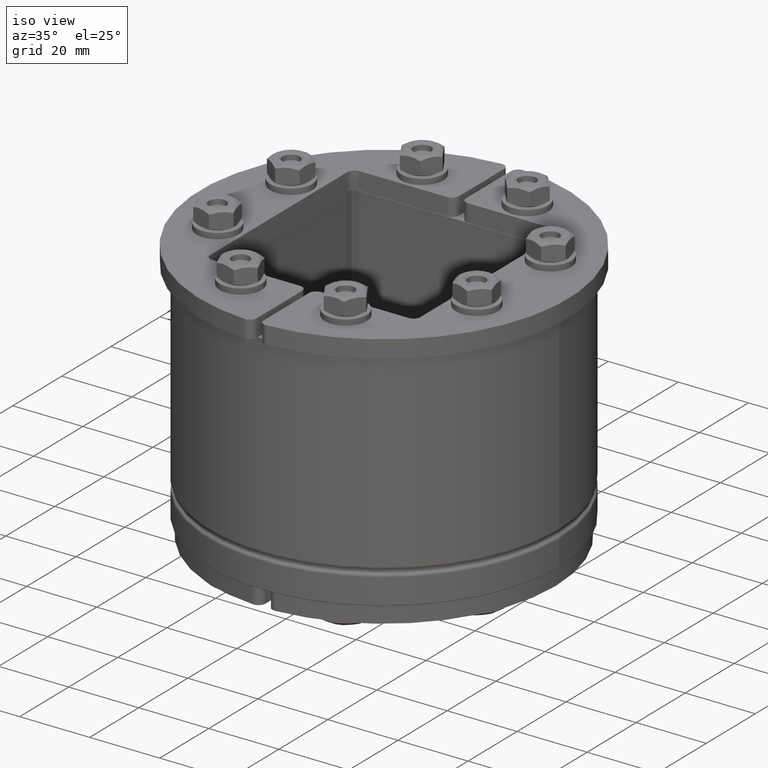
[diagram: clean part render]
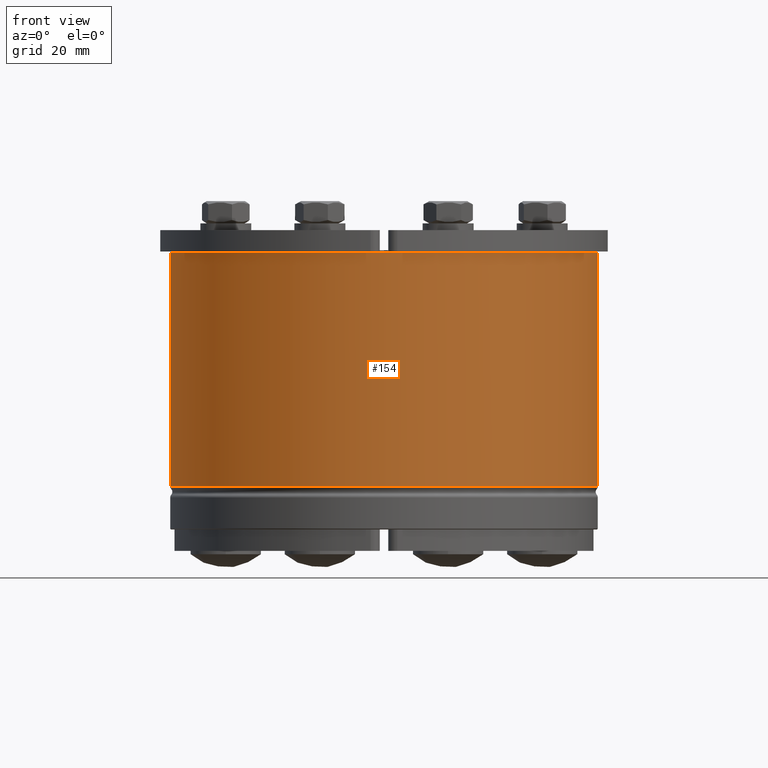
[diagram: tour spotlight — one face highlighted and labeled with its STEP entity id]
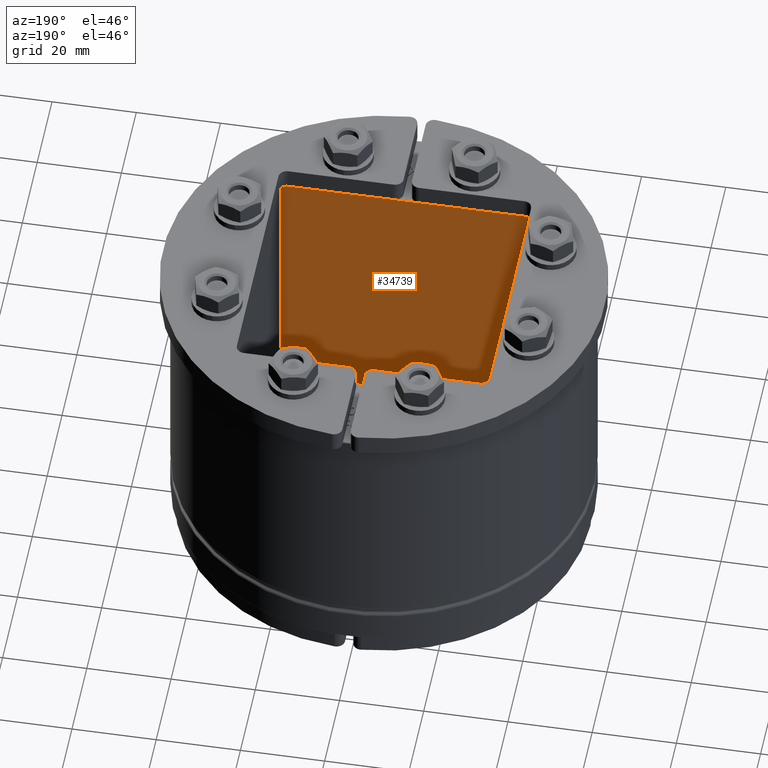
[diagram: tour spotlight — one face highlighted and labeled with its STEP entity id]
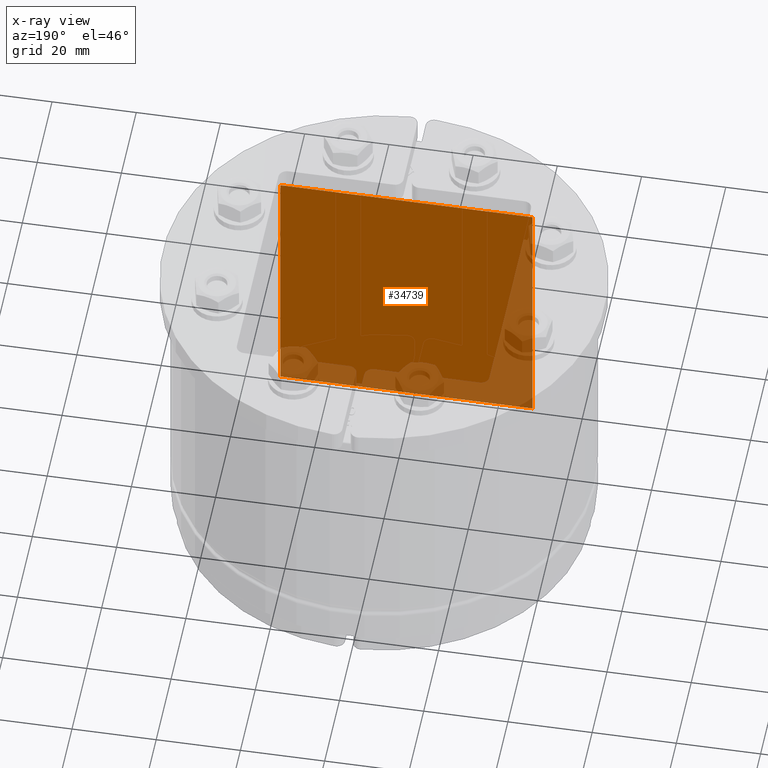
[diagram: x-ray of the same camera — body ghosted, this tour face saturated]
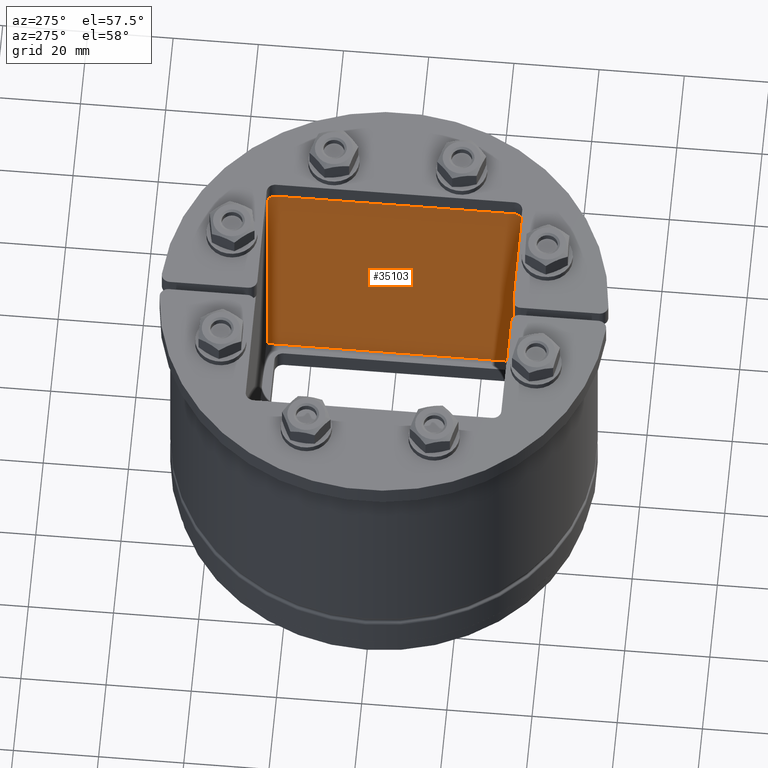
[diagram: tour spotlight — one face highlighted and labeled with its STEP entity id]
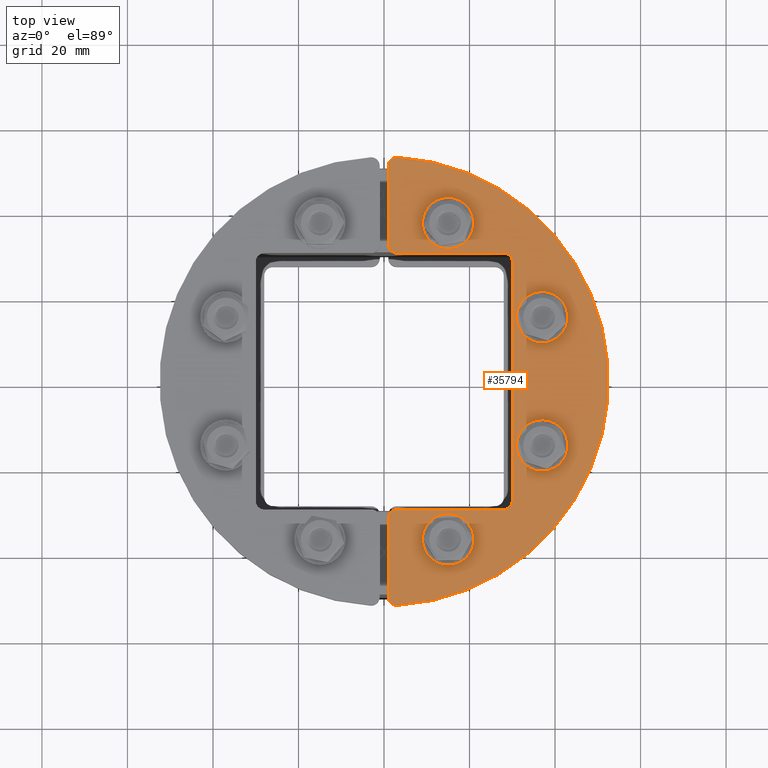
[diagram: tour spotlight — one face highlighted and labeled with its STEP entity id]
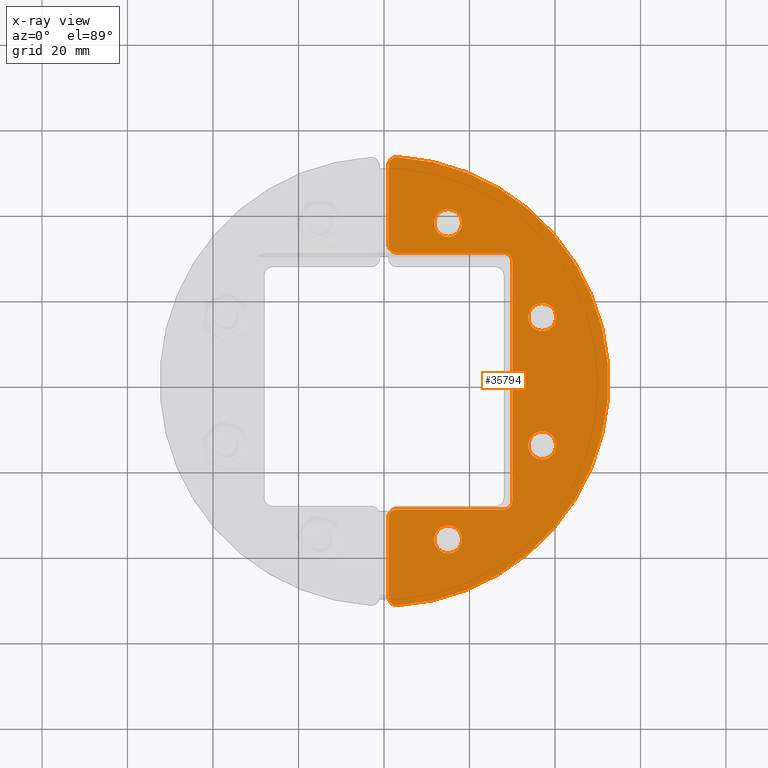
[diagram: x-ray of the same camera — body ghosted, this tour face saturated]
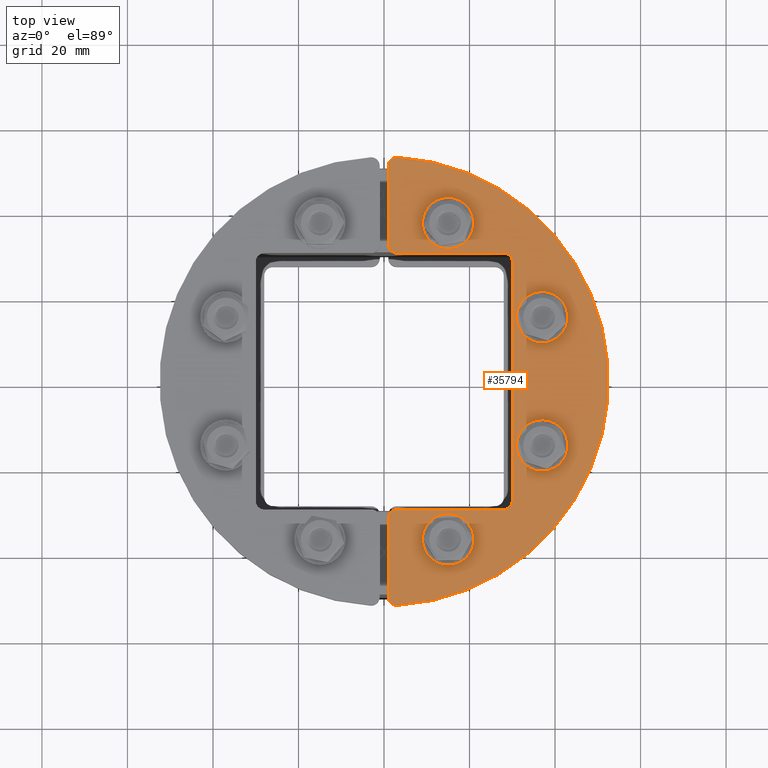
[diagram: tour spotlight — one face highlighted and labeled with its STEP entity id]
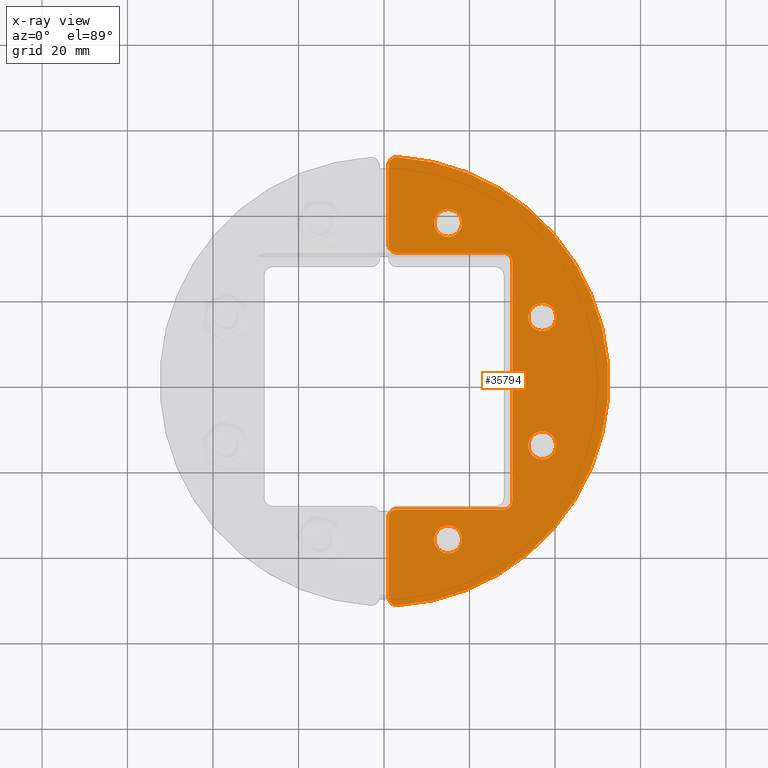
[diagram: x-ray of the same camera — body ghosted, this tour face saturated]
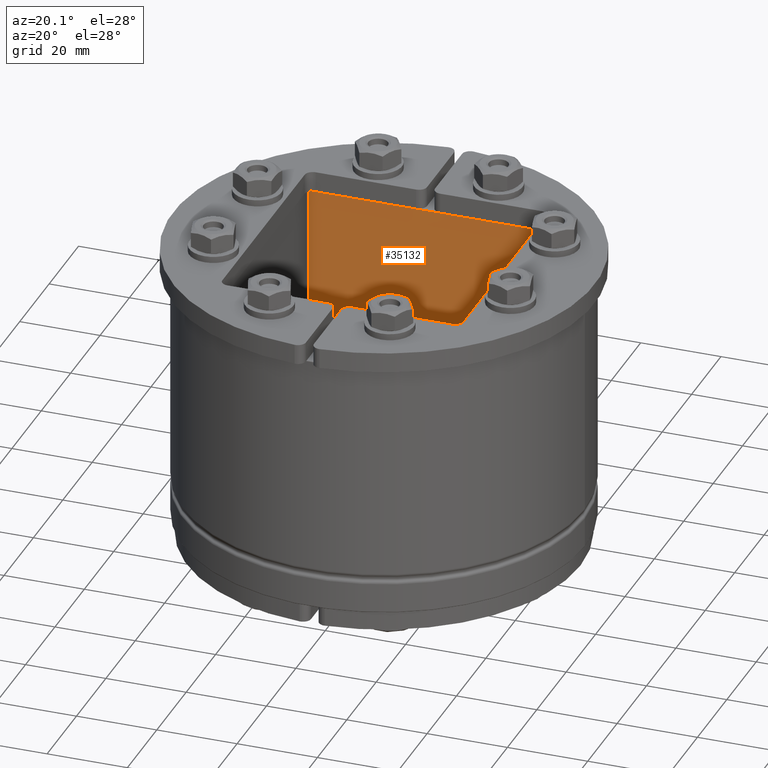
[diagram: tour spotlight — one face highlighted and labeled with its STEP entity id]
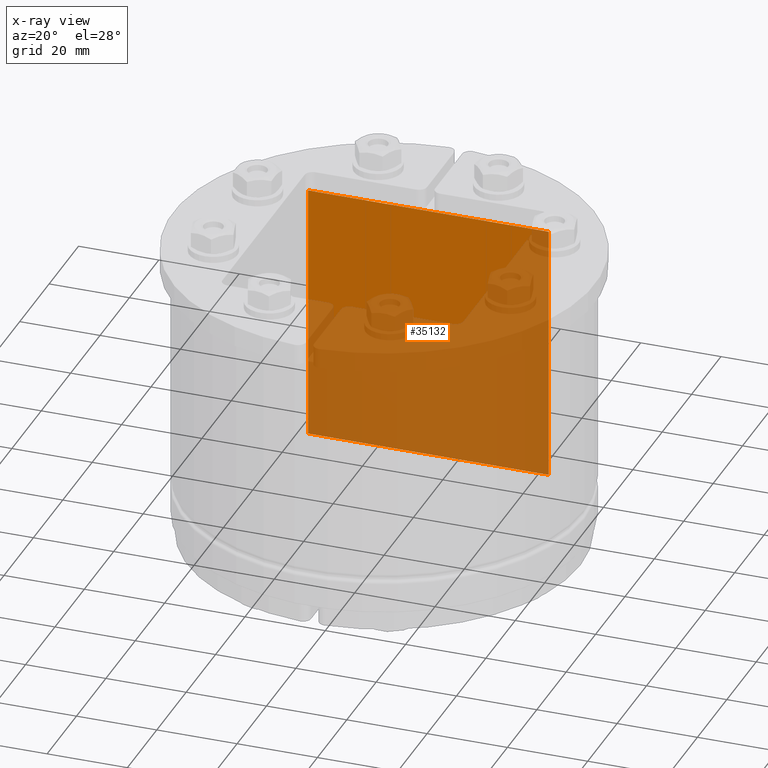
[diagram: x-ray of the same camera — body ghosted, this tour face saturated]
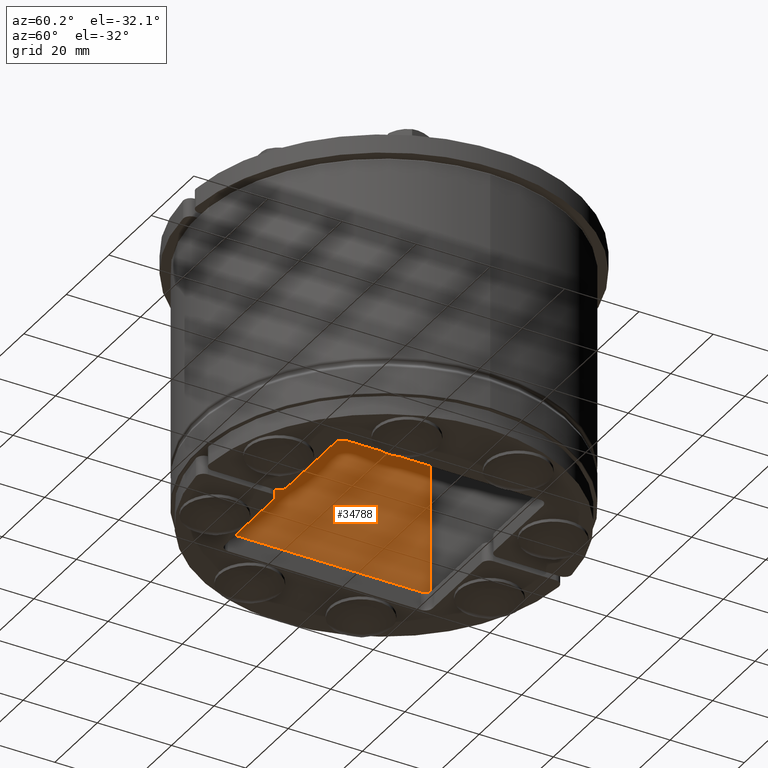
[diagram: tour spotlight — one face highlighted and labeled with its STEP entity id]
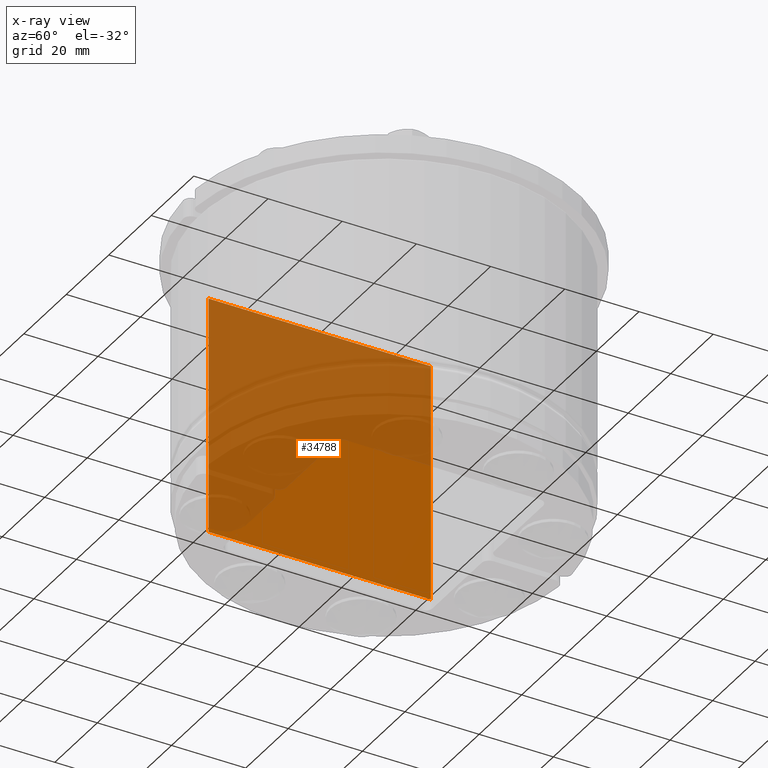
[diagram: x-ray of the same camera — body ghosted, this tour face saturated]
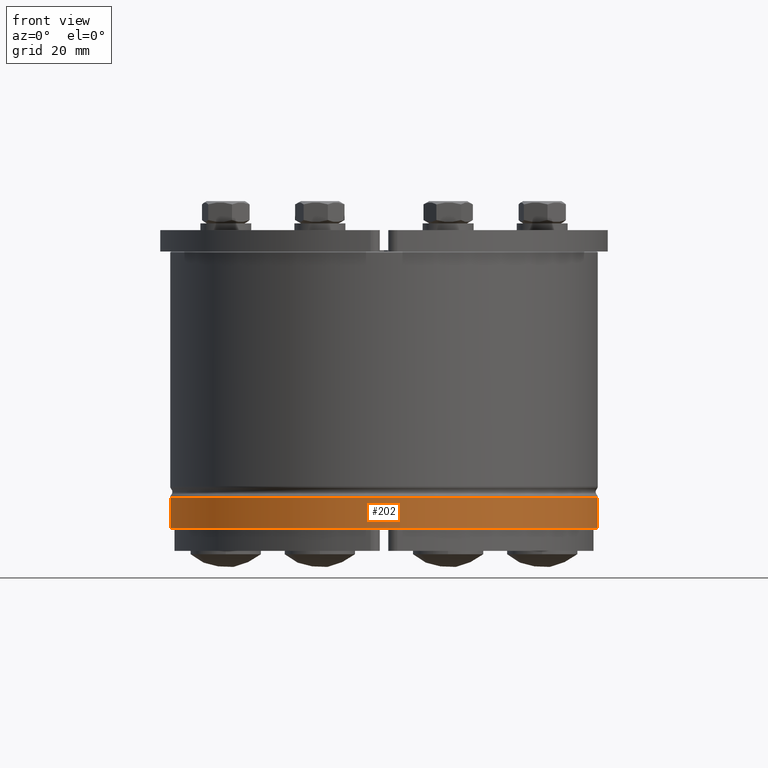
[diagram: tour spotlight — one face highlighted and labeled with its STEP entity id]
A machine part: a face-by-face anatomy tour. The part has 1444 B-rep faces; the first image is the clean iso view, then the 8 largest visible faces are spotlighted one at a time (largest first), each with its STEP entity span.

Face 1 — front view, entity #154. In plain terms, the highlighted cylindrical surface (bore or boss wall) has radius 50 mm, axis along (0, 0, 1).
Definition (entity closure, byte-faithful):
#123=CARTESIAN_POINT('',(50.0,-6.123234E-015,10.122875655532301));
#124=VERTEX_POINT('',#123);
#125=CARTESIAN_POINT('',(0.0,0.0,10.122875655532301));
#126=DIRECTION('',(0.0,0.0,-1.0));
#127=DIRECTION('',(-1.0,0.0,0.0));
#128=AXIS2_PLACEMENT_3D('',#125,#126,#127);
#129=CIRCLE('',#128,50.0);
#130=EDGE_CURVE('',#124,#124,#129,.T.);
#135=CARTESIAN_POINT('',(0.0,0.0,0.0));
#136=DIRECTION('',(0.0,0.0,1.0));
#137=DIRECTION('',(-1.0,0.0,0.0));
#138=AXIS2_PLACEMENT_3D('',#135,#136,#137);
#139=CYLINDRICAL_SURFACE('',#138,50.0);
#140=CARTESIAN_POINT('',(50.0,6.123234E-015,64.700000000000003));
#141=VERTEX_POINT('',#140);
#142=CARTESIAN_POINT('',(0.0,0.0,64.700000000000003));
#143=DIRECTION('',(0.0,0.0,1.0));
#144=DIRECTION('',(-1.0,0.0,0.0));
#145=AXIS2_PLACEMENT_3D('',#142,#143,#144);
#146=CIRCLE('',#145,50.0);
#147=EDGE_CURVE('',#141,#141,#146,.T.);
#148=ORIENTED_EDGE('',*,*,#147,.F.);
#149=EDGE_LOOP('',(#148));
#150=FACE_OUTER_BOUND('',#149,.T.);
#151=ORIENTED_EDGE('',*,*,#130,.F.);
#152=EDGE_LOOP('',(#151));
#153=FACE_BOUND('',#152,.T.);
#154=ADVANCED_FACE('',(#150,#153),#139,.T.);

Face 2 — auxiliary view, entity #34739. An x-ray twin of the same camera follows (body ghosted, this face saturated) — the face is partly hidden behind the body. In plain terms, the highlighted planar face has unit normal (0, -1, 0).
Definition (entity closure, byte-faithful):
#34620=CARTESIAN_POINT('',(29.95000000000001,-30.250000000000004,0.3));
#34621=VERTEX_POINT('',#34620);
#34646=CARTESIAN_POINT('',(-29.95000000000001,-30.250000000000004,0.3));
#34647=VERTEX_POINT('',#34646);
#34655=CARTESIAN_POINT('',(-29.95000000000001,-30.250000000000004,0.3));
#34656=DIRECTION('',(1.0,0.0,0.0));
#34657=VECTOR('',#34656,59.90000000000002);
#34658=LINE('',#34655,#34657);
#34659=EDGE_CURVE('',#34647,#34621,#34658,.T.);
#34709=CARTESIAN_POINT('',(30.250000000000004,-30.250000000000004,0.0));
#34710=DIRECTION('',(0.0,-1.0,0.0));
#34711=DIRECTION('',(0.0,0.0,-1.0));
#34712=AXIS2_PLACEMENT_3D('',#34709,#34710,#34711);
#34713=PLANE('',#34712);
#34714=ORIENTED_EDGE('',*,*,#34659,.F.);
#34715=CARTESIAN_POINT('',(-29.95000000000001,-30.250000000000004,64.700000000000003));
#34716=VERTEX_POINT('',#34715);
#34717=CARTESIAN_POINT('',(-29.95000000000001,-30.250000000000004,64.700000000000003));
#34718=DIRECTION('',(0.0,0.0,-1.0));
#34719=VECTOR('',#34718,64.400000000000006);
#34720=LINE('',#34717,#34719);
#34721=EDGE_CURVE('',#34716,#34647,#34720,.T.);
#34722=ORIENTED_EDGE('',*,*,#34721,.F.);
#34723=CARTESIAN_POINT('',(29.95000000000001,-30.250000000000004,64.700000000000003));
#34724=VERTEX_POINT('',#34723);
#34725=CARTESIAN_POINT('',(29.95000000000001,-30.250000000000004,64.700000000000003));
#34726=DIRECTION('',(-1.0,0.0,0.0));
#34727=VECTOR('',#34726,59.90000000000002);
#34728=LINE('',#34725,#34727);
#34729=EDGE_CURVE('',#34724,#34716,#34728,.T.);
#34730=ORIENTED_EDGE('',*,*,#34729,.F.);
#34731=CARTESIAN_POINT('',(29.95000000000001,-30.250000000000004,0.3));
#34732=DIRECTION('',(0.0,0.0,1.0));
#34733=VECTOR('',#34732,64.400000000000006);
#34734=LINE('',#34731,#34733);
#34735=EDGE_CURVE('',#34621,#34724,#34734,.T.);
#34736=ORIENTED_EDGE('',*,*,#34735,.F.);
#34737=EDGE_LOOP('',(#34714,#34722,#34730,#34736));
#34738=FACE_OUTER_BOUND('',#34737,.T.);
#34739=ADVANCED_FACE('',(#34738),#34713,.F.);

Face 3 — auxiliary view, entity #35103. In plain terms, the highlighted planar face has unit normal (1, 0, 0).
Definition (entity closure, byte-faithful):
#34569=CARTESIAN_POINT('',(30.250000000000004,29.95000000000001,0.3));
#34570=VERTEX_POINT('',#34569);
#34595=CARTESIAN_POINT('',(30.250000000000004,-29.95000000000001,0.3));
#34596=VERTEX_POINT('',#34595);
#34604=CARTESIAN_POINT('',(30.250000000000004,-29.95000000000001,0.3));
#34605=DIRECTION('',(0.0,1.0,0.0));
#34606=VECTOR('',#34605,59.90000000000002);
#34607=LINE('',#34604,#34606);
#34608=EDGE_CURVE('',#34596,#34570,#34607,.T.);
#34993=CARTESIAN_POINT('',(30.250000000000004,-29.95000000000001,64.700000000000003));
#34994=VERTEX_POINT('',#34993);
#35019=CARTESIAN_POINT('',(30.250000000000004,29.95000000000001,64.700000000000003));
#35020=VERTEX_POINT('',#35019);
#35028=CARTESIAN_POINT('',(30.250000000000004,29.95000000000001,64.700000000000003));
#35029=DIRECTION('',(0.0,-1.0,0.0));
#35030=VECTOR('',#35029,59.90000000000002);
#35031=LINE('',#35028,#35030);
#35032=EDGE_CURVE('',#35020,#34994,#35031,.T.);
#35082=CARTESIAN_POINT('',(30.250000000000004,30.250000000000004,0.0));
#35083=DIRECTION('',(1.0,0.0,0.0));
#35084=DIRECTION('',(0.0,0.0,-1.0));
#35085=AXIS2_PLACEMENT_3D('',#35082,#35083,#35084);
#35086=PLANE('',#35085);
#35087=ORIENTED_EDGE('',*,*,#34608,.F.);
#35088=CARTESIAN_POINT('',(30.250000000000004,-29.95000000000001,64.700000000000003));
#35089=DIRECTION('',(0.0,0.0,-1.0));
#35090=VECTOR('',#35089,64.400000000000006);
#35091=LINE('',#35088,#35090);
#35092=EDGE_CURVE('',#34994,#34596,#35091,.T.);
#35093=ORIENTED_EDGE('',*,*,#35092,.F.);
#35094=ORIENTED_EDGE('',*,*,#35032,.F.);
#35095=CARTESIAN_POINT('',(30.250000000000004,29.95000000000001,0.3));
#35096=DIRECTION('',(0.0,0.0,1.0));
#35097=VECTOR('',#35096,64.400000000000006);
#35098=LINE('',#35095,#35097);
#35099=EDGE_CURVE('',#34570,#35020,#35098,.T.);
#35100=ORIENTED_EDGE('',*,*,#35099,.F.);
#35101=EDGE_LOOP('',(#35087,#35093,#35094,#35100));
#35102=FACE_OUTER_BOUND('',#35101,.T.);
#35103=ADVANCED_FACE('',(#35102),#35086,.F.);

Face 4 — top view, entity #35794. An x-ray twin of the same camera follows (body ghosted, this face saturated) — the face is partly hidden behind the body. In plain terms, the highlighted planar face has unit normal (0, 0, -1).
Definition (entity closure, byte-faithful):
#35238=CARTESIAN_POINT('',(30.000000000000007,-28.000000000000025,0.0));
#35239=VERTEX_POINT('',#35238);
#35240=CARTESIAN_POINT('',(28.000000000000007,-30.000000000000028,0.0));
#35241=VERTEX_POINT('',#35240);
#35242=CARTESIAN_POINT('',(28.000000000000007,-28.000000000000025,0.0));
#35243=DIRECTION('',(0.0,0.0,-1.0));
#35244=DIRECTION('',(0.707106781186548,-0.707106781186548,0.0));
#35245=AXIS2_PLACEMENT_3D('',#35242,#35243,#35244);
#35246=CIRCLE('',#35245,2.0);
#35247=EDGE_CURVE('',#35239,#35241,#35246,.T.);
#35281=CARTESIAN_POINT('',(-28.0,-30.0,0.0));
#35282=VERTEX_POINT('',#35281);
#35283=CARTESIAN_POINT('',(-28.0,-30.0,0.0));
#35284=DIRECTION('',(1.0,0.0,0.0));
#35285=VECTOR('',#35284,56.000000000000007);
#35286=LINE('',#35283,#35285);
#35287=EDGE_CURVE('',#35282,#35241,#35286,.T.);
#35322=CARTESIAN_POINT('',(32.0,-0.999999999999999,0.0));
#35323=VERTEX_POINT('',#35322);
#35330=CARTESIAN_POINT('',(30.0,-2.999999999999998,0.0));
#35331=VERTEX_POINT('',#35330);
#35332=CARTESIAN_POINT('',(32.0,-2.999999999999998,0.0));
#35333=DIRECTION('',(0.0,0.0,1.0));
#35334=DIRECTION('',(-0.707106781186548,0.707106781186547,0.0));
#35335=AXIS2_PLACEMENT_3D('',#35332,#35333,#35334);
#35336=CIRCLE('',#35335,2.0);
#35337=EDGE_CURVE('',#35323,#35331,#35336,.T.);
#35362=CARTESIAN_POINT('',(50.4108123322765,-0.999999999999997,0.0));
#35363=VERTEX_POINT('',#35362);
#35370=CARTESIAN_POINT('',(32.0,-0.999999999999999,0.0));
#35371=DIRECTION('',(1.0,0.0,0.0));
#35372=VECTOR('',#35371,18.4108123322765);
#35373=LINE('',#35370,#35372);
#35374=EDGE_CURVE('',#35323,#35363,#35373,.T.);
#35506=CARTESIAN_POINT('',(-50.410812332276492,-0.999999999999985,0.0));
#35507=VERTEX_POINT('',#35506);
#35514=CARTESIAN_POINT('',(-52.407280147416166,-3.118811881188105,0.0));
#35515=VERTEX_POINT('',#35514);
#35516=CARTESIAN_POINT('',(-50.410812332276492,-2.999999999999986,0.0));
#35517=DIRECTION('',(0.0,0.0,1.0));
#35518=DIRECTION('',(-0.727806959500271,0.685782056999869,0.0));
#35519=AXIS2_PLACEMENT_3D('',#35516,#35517,#35518);
#35520=CIRCLE('',#35519,2.0);
#35521=EDGE_CURVE('',#35507,#35515,#35520,.T.);
#35538=CARTESIAN_POINT('',(52.407280147416166,-3.118811881188115,0.0));
#35539=VERTEX_POINT('',#35538);
#35540=CARTESIAN_POINT('',(0.0,0.0,0.0));
#35541=DIRECTION('',(0.0,0.0,-1.0));
#35542=DIRECTION('',(0.999818577647273,0.019047619047619,0.0));
#35543=AXIS2_PLACEMENT_3D('',#35540,#35541,#35542);
#35544=CIRCLE('',#35543,52.499999999999993);
#35545=EDGE_CURVE('',#35539,#35515,#35544,.T.);
#35564=CARTESIAN_POINT('',(50.4108123322765,-2.999999999999996,0.0));
#35565=DIRECTION('',(0.0,0.0,1.0));
#35566=DIRECTION('',(0.727806959500274,0.685782056999865,0.0));
#35567=AXIS2_PLACEMENT_3D('',#35564,#35565,#35566);
#35568=CIRCLE('',#35567,2.0);
#35569=EDGE_CURVE('',#35539,#35363,#35568,.T.);
#35581=CARTESIAN_POINT('',(-30.0,-3.000000000000004,0.0));
#35582=VERTEX_POINT('',#35581);
#35589=CARTESIAN_POINT('',(-32.0,-1.000000000000003,0.0));
#35590=VERTEX_POINT('',#35589);
#35591=CARTESIAN_POINT('',(-32.0,-3.000000000000004,0.0));
#35592=DIRECTION('',(0.0,0.0,1.0));
#35593=DIRECTION('',(0.707106781186548,0.707106781186547,0.0));
#35594=AXIS2_PLACEMENT_3D('',#35591,#35592,#35593);
#35595=CIRCLE('',#35594,2.0);
#35596=EDGE_CURVE('',#35582,#35590,#35595,.T.);
#35615=CARTESIAN_POINT('',(-50.410812332276485,-0.999999999999985,0.0));
#35616=DIRECTION('',(1.0,0.0,0.0));
#35617=VECTOR('',#35616,18.410812332276485);
#35618=LINE('',#35615,#35617);
#35619=EDGE_CURVE('',#35507,#35590,#35618,.T.);
#35629=CARTESIAN_POINT('',(-30.0,-28.0,0.0));
#35630=VERTEX_POINT('',#35629);
#35631=CARTESIAN_POINT('',(-28.0,-28.0,0.0));
#35632=DIRECTION('',(0.0,0.0,-1.0));
#35633=DIRECTION('',(-0.707106781186548,-0.707106781186548,0.0));
#35634=AXIS2_PLACEMENT_3D('',#35631,#35632,#35633);
#35635=CIRCLE('',#35634,2.0);
#35636=EDGE_CURVE('',#35282,#35630,#35635,.T.);
#35657=CARTESIAN_POINT('',(-30.0,-3.000000000000004,0.0));
#35658=DIRECTION('',(0.0,-1.0,0.0));
#35659=VECTOR('',#35658,24.999999999999996);
#35660=LINE('',#35657,#35659);
#35661=EDGE_CURVE('',#35582,#35630,#35660,.T.);
#35671=CARTESIAN_POINT('',(18.25,-37.0,0.0));
#35672=VERTEX_POINT('',#35671);
#35673=CARTESIAN_POINT('',(15.0,-37.0,0.0));
#35674=DIRECTION('',(0.0,0.0,1.0));
#35675=DIRECTION('',(-1.0,0.0,0.0));
#35676=AXIS2_PLACEMENT_3D('',#35673,#35674,#35675);
#35677=CIRCLE('',#35676,3.25);
#35678=EDGE_CURVE('',#35672,#35672,#35677,.T.);
#35691=CARTESIAN_POINT('',(-11.75,-37.0,0.0));
#35692=VERTEX_POINT('',#35691);
#35693=CARTESIAN_POINT('',(-15.0,-37.0,0.0));
#35694=DIRECTION('',(0.0,0.0,1.0));
#35695=DIRECTION('',(-1.0,0.0,0.0));
#35696=AXIS2_PLACEMENT_3D('',#35693,#35694,#35695);
#35697=CIRCLE('',#35696,3.25);
#35698=EDGE_CURVE('',#35692,#35692,#35697,.T.);
#35711=CARTESIAN_POINT('',(-33.75,-15.0,0.0));
#35712=VERTEX_POINT('',#35711);
#35713=CARTESIAN_POINT('',(-37.0,-15.0,0.0));
#35714=DIRECTION('',(0.0,0.0,1.0));
#35715=DIRECTION('',(-1.0,0.0,0.0));
#35716=AXIS2_PLACEMENT_3D('',#35713,#35714,#35715);
#35717=CIRCLE('',#35716,3.25);
#35718=EDGE_CURVE('',#35712,#35712,#35717,.T.);
#35731=CARTESIAN_POINT('',(40.25,-15.0,0.0));
#35732=VERTEX_POINT('',#35731);
#35733=CARTESIAN_POINT('',(37.0,-15.0,0.0));
#35734=DIRECTION('',(0.0,0.0,1.0));
#35735=DIRECTION('',(-1.0,0.0,0.0));
#35736=AXIS2_PLACEMENT_3D('',#35733,#35734,#35735);
#35737=CIRCLE('',#35736,3.25);
#35738=EDGE_CURVE('',#35732,#35732,#35737,.T.);
#35754=CARTESIAN_POINT('',(30.000000000000007,-28.000000000000028,0.0));
#35755=DIRECTION('',(0.0,1.0,0.0));
#35756=VECTOR('',#35755,25.000000000000028);
#35757=LINE('',#35754,#35756);
#35758=EDGE_CURVE('',#35239,#35331,#35757,.T.);
#35763=CARTESIAN_POINT('',(-1.165734E-014,-23.714711224263656,0.0));
#35764=DIRECTION('',(0.0,0.0,1.0));
#35765=DIRECTION('',(1.0,0.0,0.0));
#35766=AXIS2_PLACEMENT_3D('',#35763,#35764,#35765);
#35767=PLANE('',#35766);
#35768=ORIENTED_EDGE('',*,*,#35337,.F.);
#35769=ORIENTED_EDGE('',*,*,#35374,.T.);
#35770=ORIENTED_EDGE('',*,*,#35569,.F.);
#35771=ORIENTED_EDGE('',*,*,#35545,.T.);
#35772=ORIENTED_EDGE('',*,*,#35521,.F.);
#35773=ORIENTED_EDGE('',*,*,#35619,.T.);
#35774=ORIENTED_EDGE('',*,*,#35596,.F.);
#35775=ORIENTED_EDGE('',*,*,#35661,.T.);
#35776=ORIENTED_EDGE('',*,*,#35636,.F.);
#35777=ORIENTED_EDGE('',*,*,#35287,.T.);
#35778=ORIENTED_EDGE('',*,*,#35247,.F.);
#35779=ORIENTED_EDGE('',*,*,#35758,.T.);
#35780=EDGE_LOOP('',(#35768,#35769,#35770,#35771,#35772,#35773,#35774,#35775,#35776,#35777,#35778,#35779));
#35781=FACE_OUTER_BOUND('',#35780,.T.);
#35782=ORIENTED_EDGE('',*,*,#35678,.T.);
#35783=EDGE_LOOP('',(#35782));
#35784=FACE_BOUND('',#35783,.T.);
#35785=ORIENTED_EDGE('',*,*,#35698,.T.);
#35786=EDGE_LOOP('',(#35785));
#35787=FACE_BOUND('',#35786,.T.);
#35788=ORIENTED_EDGE('',*,*,#35718,.T.);
#35789=EDGE_LOOP('',(#35788));
#35790=FACE_BOUND('',#35789,.T.);
#35791=ORIENTED_EDGE('',*,*,#35738,.T.);
#35792=EDGE_LOOP('',(#35791));
#35793=FACE_BOUND('',#35792,.T.);
#35794=ADVANCED_FACE('',(#35781,#35784,#35787,#35790,#35793),#35767,.F.);

Face 5 — top view, entity #35794. An x-ray twin of the same camera follows (body ghosted, this face saturated) — the face is partly hidden behind the body. In plain terms, the highlighted planar face has unit normal (0, 0, -1).
Definition (entity closure, byte-faithful):
#35238=CARTESIAN_POINT('',(30.000000000000007,-28.000000000000025,0.0));
#35239=VERTEX_POINT('',#35238);
#35240=CARTESIAN_POINT('',(28.000000000000007,-30.000000000000028,0.0));
#35241=VERTEX_POINT('',#35240);
#35242=CARTESIAN_POINT('',(28.000000000000007,-28.000000000000025,0.0));
#35243=DIRECTION('',(0.0,0.0,-1.0));
#35244=DIRECTION('',(0.707106781186548,-0.707106781186548,0.0));
#35245=AXIS2_PLACEMENT_3D('',#35242,#35243,#35244);
#35246=CIRCLE('',#35245,2.0);
#35247=EDGE_CURVE('',#35239,#35241,#35246,.T.);
#35281=CARTESIAN_POINT('',(-28.0,-30.0,0.0));
#35282=VERTEX_POINT('',#35281);
#35283=CARTESIAN_POINT('',(-28.0,-30.0,0.0));
#35284=DIRECTION('',(1.0,0.0,0.0));
#35285=VECTOR('',#35284,56.000000000000007);
#35286=LINE('',#35283,#35285);
#35287=EDGE_CURVE('',#35282,#35241,#35286,.T.);
#35322=CARTESIAN_POINT('',(32.0,-0.999999999999999,0.0));
#35323=VERTEX_POINT('',#35322);
#35330=CARTESIAN_POINT('',(30.0,-2.999999999999998,0.0));
#35331=VERTEX_POINT('',#35330);
#35332=CARTESIAN_POINT('',(32.0,-2.999999999999998,0.0));
#35333=DIRECTION('',(0.0,0.0,1.0));
#35334=DIRECTION('',(-0.707106781186548,0.707106781186547,0.0));
#35335=AXIS2_PLACEMENT_3D('',#35332,#35333,#35334);
#35336=CIRCLE('',#35335,2.0);
#35337=EDGE_CURVE('',#35323,#35331,#35336,.T.);
#35362=CARTESIAN_POINT('',(50.4108123322765,-0.999999999999997,0.0));
#35363=VERTEX_POINT('',#35362);
#35370=CARTESIAN_POINT('',(32.0,-0.999999999999999,0.0));
#35371=DIRECTION('',(1.0,0.0,0.0));
#35372=VECTOR('',#35371,18.4108123322765);
#35373=LINE('',#35370,#35372);
#35374=EDGE_CURVE('',#35323,#35363,#35373,.T.);
#35506=CARTESIAN_POINT('',(-50.410812332276492,-0.999999999999985,0.0));
#35507=VERTEX_POINT('',#35506);
#35514=CARTESIAN_POINT('',(-52.407280147416166,-3.118811881188105,0.0));
#35515=VERTEX_POINT('',#35514);
#35516=CARTESIAN_POINT('',(-50.410812332276492,-2.999999999999986,0.0));
#35517=DIRECTION('',(0.0,0.0,1.0));
#35518=DIRECTION('',(-0.727806959500271,0.685782056999869,0.0));
#35519=AXIS2_PLACEMENT_3D('',#35516,#35517,#35518);
#35520=CIRCLE('',#35519,2.0);
#35521=EDGE_CURVE('',#35507,#35515,#35520,.T.);
#35538=CARTESIAN_POINT('',(52.407280147416166,-3.118811881188115,0.0));
#35539=VERTEX_POINT('',#35538);
#35540=CARTESIAN_POINT('',(0.0,0.0,0.0));
#35541=DIRECTION('',(0.0,0.0,-1.0));
#35542=DIRECTION('',(0.999818577647273,0.019047619047619,0.0));
#35543=AXIS2_PLACEMENT_3D('',#35540,#35541,#35542);
#35544=CIRCLE('',#35543,52.499999999999993);
#35545=EDGE_CURVE('',#35539,#35515,#35544,.T.);
#35564=CARTESIAN_POINT('',(50.4108123322765,-2.999999999999996,0.0));
#35565=DIRECTION('',(0.0,0.0,1.0));
#35566=DIRECTION('',(0.727806959500274,0.685782056999865,0.0));
#35567=AXIS2_PLACEMENT_3D('',#35564,#35565,#35566);
#35568=CIRCLE('',#35567,2.0);
#35569=EDGE_CURVE('',#35539,#35363,#35568,.T.);
#35581=CARTESIAN_POINT('',(-30.0,-3.000000000000004,0.0));
#35582=VERTEX_POINT('',#35581);
#35589=CARTESIAN_POINT('',(-32.0,-1.000000000000003,0.0));
#35590=VERTEX_POINT('',#35589);
#35591=CARTESIAN_POINT('',(-32.0,-3.000000000000004,0.0));
#35592=DIRECTION('',(0.0,0.0,1.0));
#35593=DIRECTION('',(0.707106781186548,0.707106781186547,0.0));
#35594=AXIS2_PLACEMENT_3D('',#35591,#35592,#35593);
#35595=CIRCLE('',#35594,2.0);
#35596=EDGE_CURVE('',#35582,#35590,#35595,.T.);
#35615=CARTESIAN_POINT('',(-50.410812332276485,-0.999999999999985,0.0));
#35616=DIRECTION('',(1.0,0.0,0.0));
#35617=VECTOR('',#35616,18.410812332276485);
#35618=LINE('',#35615,#35617);
#35619=EDGE_CURVE('',#35507,#35590,#35618,.T.);
#35629=CARTESIAN_POINT('',(-30.0,-28.0,0.0));
#35630=VERTEX_POINT('',#35629);
#35631=CARTESIAN_POINT('',(-28.0,-28.0,0.0));
#35632=DIRECTION('',(0.0,0.0,-1.0));
#35633=DIRECTION('',(-0.707106781186548,-0.707106781186548,0.0));
#35634=AXIS2_PLACEMENT_3D('',#35631,#35632,#35633);
#35635=CIRCLE('',#35634,2.0);
#35636=EDGE_CURVE('',#35282,#35630,#35635,.T.);
#35657=CARTESIAN_POINT('',(-30.0,-3.000000000000004,0.0));
#35658=DIRECTION('',(0.0,-1.0,0.0));
#35659=VECTOR('',#35658,24.999999999999996);
#35660=LINE('',#35657,#35659);
#35661=EDGE_CURVE('',#35582,#35630,#35660,.T.);
#35671=CARTESIAN_POINT('',(18.25,-37.0,0.0));
#35672=VERTEX_POINT('',#35671);
#35673=CARTESIAN_POINT('',(15.0,-37.0,0.0));
#35674=DIRECTION('',(0.0,0.0,1.0));
#35675=DIRECTION('',(-1.0,0.0,0.0));
#35676=AXIS2_PLACEMENT_3D('',#35673,#35674,#35675);
#35677=CIRCLE('',#35676,3.25);
#35678=EDGE_CURVE('',#35672,#35672,#35677,.T.);
#35691=CARTESIAN_POINT('',(-11.75,-37.0,0.0));
#35692=VERTEX_POINT('',#35691);
#35693=CARTESIAN_POINT('',(-15.0,-37.0,0.0));
#35694=DIRECTION('',(0.0,0.0,1.0));
#35695=DIRECTION('',(-1.0,0.0,0.0));
#35696=AXIS2_PLACEMENT_3D('',#35693,#35694,#35695);
#35697=CIRCLE('',#35696,3.25);
#35698=EDGE_CURVE('',#35692,#35692,#35697,.T.);
#35711=CARTESIAN_POINT('',(-33.75,-15.0,0.0));
#35712=VERTEX_POINT('',#35711);
#35713=CARTESIAN_POINT('',(-37.0,-15.0,0.0));
#35714=DIRECTION('',(0.0,0.0,1.0));
#35715=DIRECTION('',(-1.0,0.0,0.0));
#35716=AXIS2_PLACEMENT_3D('',#35713,#35714,#35715);
#35717=CIRCLE('',#35716,3.25);
#35718=EDGE_CURVE('',#35712,#35712,#35717,.T.);
#35731=CARTESIAN_POINT('',(40.25,-15.0,0.0));
#35732=VERTEX_POINT('',#35731);
#35733=CARTESIAN_POINT('',(37.0,-15.0,0.0));
#35734=DIRECTION('',(0.0,0.0,1.0));
#35735=DIRECTION('',(-1.0,0.0,0.0));
#35736=AXIS2_PLACEMENT_3D('',#35733,#35734,#35735);
#35737=CIRCLE('',#35736,3.25);
#35738=EDGE_CURVE('',#35732,#35732,#35737,.T.);
#35754=CARTESIAN_POINT('',(30.000000000000007,-28.000000000000028,0.0));
#35755=DIRECTION('',(0.0,1.0,0.0));
#35756=VECTOR('',#35755,25.000000000000028);
#35757=LINE('',#35754,#35756);
#35758=EDGE_CURVE('',#35239,#35331,#35757,.T.);
#35763=CARTESIAN_POINT('',(-1.165734E-014,-23.714711224263656,0.0));
#35764=DIRECTION('',(0.0,0.0,1.0));
#35765=DIRECTION('',(1.0,0.0,0.0));
#35766=AXIS2_PLACEMENT_3D('',#35763,#35764,#35765);
#35767=PLANE('',#35766);
#35768=ORIENTED_EDGE('',*,*,#35337,.F.);
#35769=ORIENTED_EDGE('',*,*,#35374,.T.);
#35770=ORIENTED_EDGE('',*,*,#35569,.F.);
#35771=ORIENTED_EDGE('',*,*,#35545,.T.);
#35772=ORIENTED_EDGE('',*,*,#35521,.F.);
#35773=ORIENTED_EDGE('',*,*,#35619,.T.);
#35774=ORIENTED_EDGE('',*,*,#35596,.F.);
#35775=ORIENTED_EDGE('',*,*,#35661,.T.);
#35776=ORIENTED_EDGE('',*,*,#35636,.F.);
#35777=ORIENTED_EDGE('',*,*,#35287,.T.);
#35778=ORIENTED_EDGE('',*,*,#35247,.F.);
#35779=ORIENTED_EDGE('',*,*,#35758,.T.);
#35780=EDGE_LOOP('',(#35768,#35769,#35770,#35771,#35772,#35773,#35774,#35775,#35776,#35777,#35778,#35779));
#35781=FACE_OUTER_BOUND('',#35780,.T.);
#35782=ORIENTED_EDGE('',*,*,#35678,.T.);
#35783=EDGE_LOOP('',(#35782));
#35784=FACE_BOUND('',#35783,.T.);
#35785=ORIENTED_EDGE('',*,*,#35698,.T.);
#35786=EDGE_LOOP('',(#35785));
#35787=FACE_BOUND('',#35786,.T.);
#35788=ORIENTED_EDGE('',*,*,#35718,.T.);
#35789=EDGE_LOOP('',(#35788));
#35790=FACE_BOUND('',#35789,.T.);
#35791=ORIENTED_EDGE('',*,*,#35738,.T.);
#35792=EDGE_LOOP('',(#35791));
#35793=FACE_BOUND('',#35792,.T.);
#35794=ADVANCED_FACE('',(#35781,#35784,#35787,#35790,#35793),#35767,.F.);

Face 6 — auxiliary view, entity #35132. An x-ray twin of the same camera follows (body ghosted, this face saturated) — the face is partly hidden behind the body. In plain terms, the highlighted planar face has unit normal (0, 1, 0).
Definition (entity closure, byte-faithful):
#34520=CARTESIAN_POINT('',(-29.95000000000001,30.250000000000004,0.3));
#34521=VERTEX_POINT('',#34520);
#34544=CARTESIAN_POINT('',(29.95000000000001,30.250000000000004,0.3));
#34545=VERTEX_POINT('',#34544);
#34553=CARTESIAN_POINT('',(29.95000000000001,30.250000000000004,0.3));
#34554=DIRECTION('',(-1.0,0.0,0.0));
#34555=VECTOR('',#34554,59.90000000000002);
#34556=LINE('',#34553,#34555);
#34557=EDGE_CURVE('',#34545,#34521,#34556,.T.);
#34795=CARTESIAN_POINT('',(-29.95000000000001,30.250000000000004,64.700000000000003));
#34796=VERTEX_POINT('',#34795);
#34797=CARTESIAN_POINT('',(-29.95000000000001,30.250000000000004,0.3));
#34798=DIRECTION('',(0.0,0.0,1.0));
#34799=VECTOR('',#34798,64.400000000000006);
#34800=LINE('',#34797,#34799);
#34801=EDGE_CURVE('',#34521,#34796,#34800,.T.);
#35044=CARTESIAN_POINT('',(29.95000000000001,30.250000000000004,64.700000000000003));
#35045=VERTEX_POINT('',#35044);
#35073=CARTESIAN_POINT('',(-29.95000000000001,30.250000000000004,64.700000000000003));
#35074=DIRECTION('',(1.0,0.0,0.0));
#35075=VECTOR('',#35074,59.90000000000002);
#35076=LINE('',#35073,#35075);
#35077=EDGE_CURVE('',#34796,#35045,#35076,.T.);
#35112=CARTESIAN_POINT('',(29.95000000000001,30.250000000000004,64.700000000000003));
#35113=DIRECTION('',(0.0,0.0,-1.0));
#35114=VECTOR('',#35113,64.400000000000006);
#35115=LINE('',#35112,#35114);
#35116=EDGE_CURVE('',#35045,#34545,#35115,.T.);
#35121=CARTESIAN_POINT('',(-30.250000000000004,30.250000000000004,0.0));
#35122=DIRECTION('',(0.0,1.0,0.0));
#35123=DIRECTION('',(0.0,0.0,1.0));
#35124=AXIS2_PLACEMENT_3D('',#35121,#35122,#35123);
#35125=PLANE('',#35124);
#35126=ORIENTED_EDGE('',*,*,#34557,.F.);
#35127=ORIENTED_EDGE('',*,*,#35116,.F.);
#35128=ORIENTED_EDGE('',*,*,#35077,.F.);
#35129=ORIENTED_EDGE('',*,*,#34801,.F.);
#35130=EDGE_LOOP('',(#35126,#35127,#35128,#35129));
#35131=FACE_OUTER_BOUND('',#35130,.T.);
#35132=ADVANCED_FACE('',(#35131),#35125,.F.);

Face 7 — auxiliary view, entity #34788. An x-ray twin of the same camera follows (body ghosted, this face saturated) — the face is partly hidden behind the body. In plain terms, the highlighted planar face has unit normal (-1, 0, 0).
Definition (entity closure, byte-faithful):
#34510=CARTESIAN_POINT('',(-30.250000000000004,29.95000000000001,0.3));
#34511=VERTEX_POINT('',#34510);
#34671=CARTESIAN_POINT('',(-30.250000000000004,-29.95000000000001,0.3));
#34672=VERTEX_POINT('',#34671);
#34700=CARTESIAN_POINT('',(-30.250000000000004,29.95000000000001,0.3));
#34701=DIRECTION('',(0.0,-1.0,0.0));
#34702=VECTOR('',#34701,59.90000000000002);
#34703=LINE('',#34700,#34702);
#34704=EDGE_CURVE('',#34511,#34672,#34703,.T.);
#34746=CARTESIAN_POINT('',(-30.250000000000004,-29.95000000000001,64.700000000000003));
#34747=VERTEX_POINT('',#34746);
#34748=CARTESIAN_POINT('',(-30.250000000000004,-29.95000000000001,0.3));
#34749=DIRECTION('',(0.0,0.0,1.0));
#34750=VECTOR('',#34749,64.400000000000006);
#34751=LINE('',#34748,#34750);
#34752=EDGE_CURVE('',#34672,#34747,#34751,.T.);
#34765=CARTESIAN_POINT('',(-30.250000000000004,-30.250000000000004,0.0));
#34766=DIRECTION('',(-1.0,0.0,0.0));
#34767=DIRECTION('',(0.0,0.0,1.0));
#34768=AXIS2_PLACEMENT_3D('',#34765,#34766,#34767);
#34769=PLANE('',#34768);
#34770=ORIENTED_EDGE('',*,*,#34704,.F.);
#34771=CARTESIAN_POINT('',(-30.250000000000004,29.95000000000001,64.700000000000003));
#34772=VERTEX_POINT('',#34771);
#34773=CARTESIAN_POINT('',(-30.250000000000004,29.95000000000001,64.700000000000003));
#34774=DIRECTION('',(0.0,0.0,-1.0));
#34775=VECTOR('',#34774,64.400000000000006);
#34776=LINE('',#34773,#34775);
#34777=EDGE_CURVE('',#34772,#34511,#34776,.T.);
#34778=ORIENTED_EDGE('',*,*,#34777,.F.);
#34779=CARTESIAN_POINT('',(-30.250000000000004,-29.95000000000001,64.700000000000003));
#34780=DIRECTION('',(0.0,1.0,0.0));
#34781=VECTOR('',#34780,59.90000000000002);
#34782=LINE('',#34779,#34781);
#34783=EDGE_CURVE('',#34747,#34772,#34782,.T.);
#34784=ORIENTED_EDGE('',*,*,#34783,.F.);
#34785=ORIENTED_EDGE('',*,*,#34752,.F.);
#34786=EDGE_LOOP('',(#34770,#34778,#34784,#34785));
#34787=FACE_OUTER_BOUND('',#34786,.T.);
#34788=ADVANCED_FACE('',(#34787),#34769,.F.);

Face 8 — front view, entity #202. In plain terms, the highlighted cylindrical surface (bore or boss wall) has radius 50 mm, axis along (0, 0, 1).
Definition (entity closure, byte-faithful):
#171=CARTESIAN_POINT('',(50.0,6.123234E-015,7.4771243444677));
#172=VERTEX_POINT('',#171);
#173=CARTESIAN_POINT('',(0.0,0.0,7.4771243444677));
#174=DIRECTION('',(0.0,0.0,1.0));
#175=DIRECTION('',(-1.0,0.0,0.0));
#176=AXIS2_PLACEMENT_3D('',#173,#174,#175);
#177=CIRCLE('',#176,50.0);
#178=EDGE_CURVE('',#172,#172,#177,.T.);
#183=CARTESIAN_POINT('',(0.0,0.0,0.0));
#184=DIRECTION('',(0.0,0.0,1.0));
#185=DIRECTION('',(-1.0,0.0,0.0));
#186=AXIS2_PLACEMENT_3D('',#183,#184,#185);
#187=CYLINDRICAL_SURFACE('',#186,50.0);
#188=CARTESIAN_POINT('',(50.0,-6.123234E-015,0.3));
#189=VERTEX_POINT('',#188);
#190=CARTESIAN_POINT('',(0.0,0.0,0.3));
#191=DIRECTION('',(0.0,0.0,-1.0));
#192=DIRECTION('',(-1.0,0.0,0.0));
#193=AXIS2_PLACEMENT_3D('',#190,#191,#192);
#194=CIRCLE('',#193,50.0);
#195=EDGE_CURVE('',#189,#189,#194,.T.);
#196=ORIENTED_EDGE('',*,*,#195,.F.);
#197=EDGE_LOOP('',(#196));
#198=FACE_OUTER_BOUND('',#197,.T.);
#199=ORIENTED_EDGE('',*,*,#178,.F.);
#200=EDGE_LOOP('',(#199));
#201=FACE_BOUND('',#200,.T.);
#202=ADVANCED_FACE('',(#198,#201),#187,.T.);